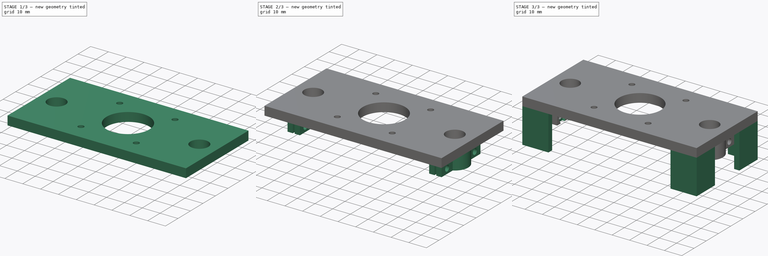
[diagram: build sequence overview — one tinted view per stage of 3, left to right]
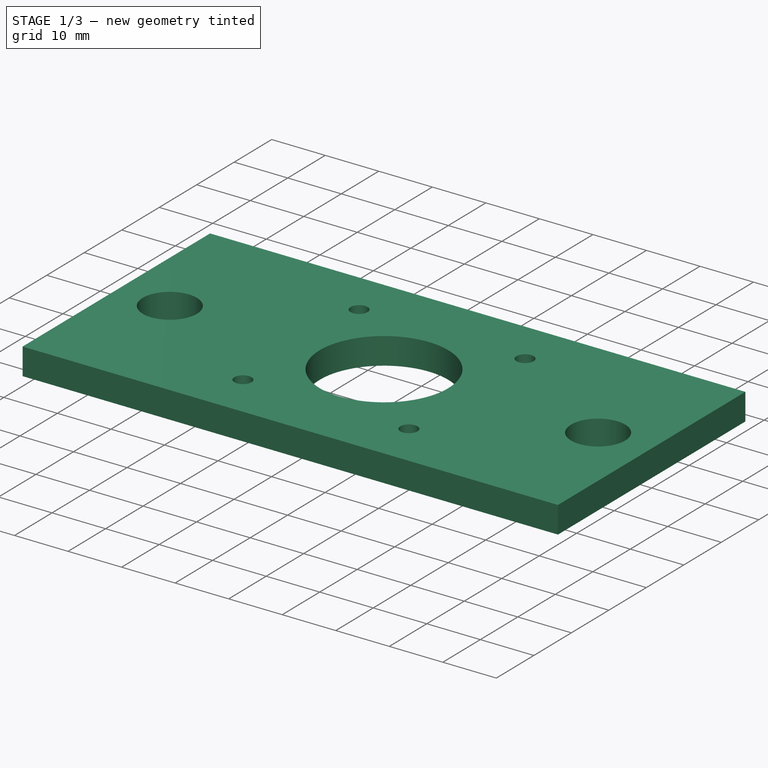
[diagram: stage 1 of 3 — iso view after this stage's code; geometry added in this stage tinted green]
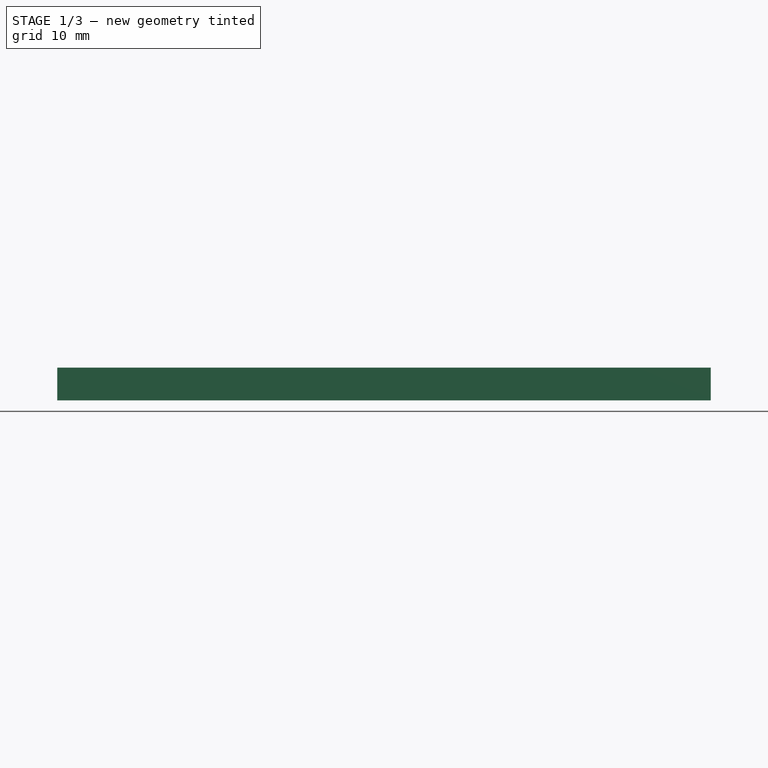
[diagram: stage 1 of 3 — front view after this stage's code; geometry added in this stage tinted green]
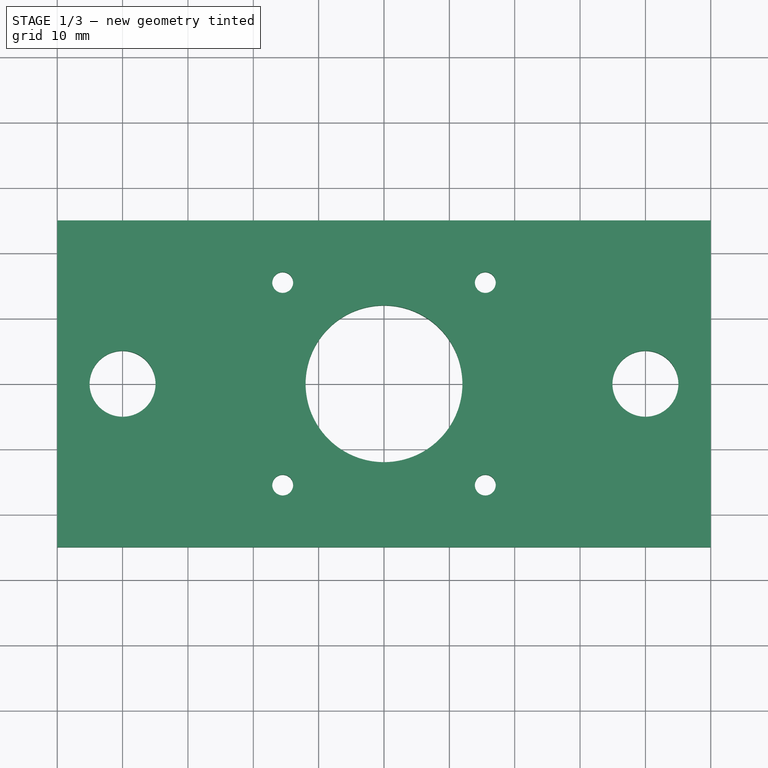
[diagram: stage 1 of 3 — top view after this stage's code; geometry added in this stage tinted green]
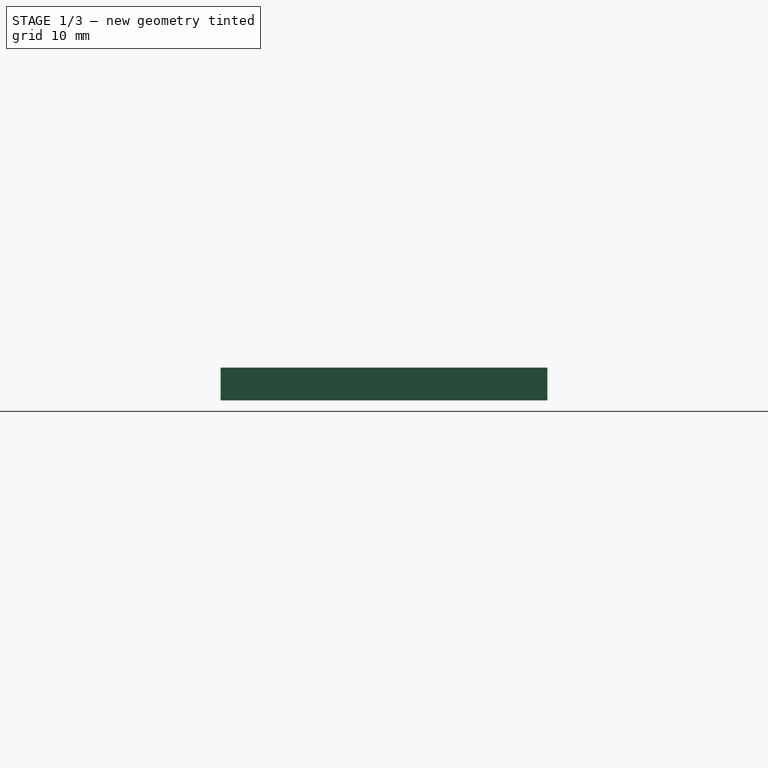
[diagram: stage 1 of 3 — right view after this stage's code; geometry added in this stage tinted green]
FCSTD DOCUMENT  (FreeCAD 0.15R4671 (Git))
Label: Z-Achse Halter Schrittmotor und Wellen
License: All rights reserved
LicenseURL: http://de.wikipedia.org/wiki/Alle_Rechte_vorbehalten
objects: Sketcher::SketchObject×8, PartDesign::Pocket×5, PartDesign::Pad×3
note: 24 computed .brp shape members not serialized (recipe doc carries the construction recipe); baked Part::Feature solids carry a one-line shape summary decoded from their .brp

FEATURE [Sketcher::SketchObject] Sketch
  sketch-geometry (4):
    g0: LineSegment StartX=-50 StartY=25 StartZ=0 EndX=50 EndY=25 EndZ=0
    g1: LineSegment StartX=50 StartY=25 StartZ=0 EndX=50 EndY=-25 EndZ=0
    g2: LineSegment StartX=50 StartY=-25 StartZ=0 EndX=-50 EndY=-25 EndZ=0
    g3: LineSegment StartX=-50 StartY=-25 StartZ=0 EndX=-50 EndY=25 EndZ=0
  constraints (12):
    c: Coincident(g0,g1)
    c: Coincident(g1,g2)
    c: Coincident(g2,g3)
    c: Coincident(g3,g0)
    c: Horizontal(g0)
    c: Horizontal(g2)
    c: Vertical(g1)
    c: Vertical(g3)
    c: Symmetric(g1,g2,g-2)
    c: Symmetric(g1,g0,g-1)
    c: DistanceY(g1) = -50
    c: DistanceX(g2) = -100
FEATURE [PartDesign::Pad] Pad
  Length = 5
  Length2 = 100
  Sketch = -> Sketch
  Type = 0
FEATURE [Sketcher::SketchObject] Sketch001
  Placement = pos=(0,0,5) rot=(0,0,1;0rad)
  Support = -> Pad [Face6]
  sketch-geometry (2):
    g0: Circle CenterX=-40 CenterY=0 CenterZ=0 NormalX=0 NormalY=0 NormalZ=1 Radius=5.05
    g1: Circle CenterX=40 CenterY=0 CenterZ=0 NormalX=0 NormalY=0 NormalZ=1 Radius=5.05
  constraints (5):
    c: PointOnObject(g0,g-1)
    c: Symmetric(g1,g0,g-2)
    c: Radius(g0) = 5.05
    c: Equal(g0,g1)
    c: DistanceX(g-1,g0) = -40
FEATURE [PartDesign::Pocket] Pocket
  Length = 5
  Sketch = -> Sketch001
  Type = 1
FEATURE [Sketcher::SketchObject] Sketch002
  Placement = pos=(0,0,5) rot=(0,0,1;0rad)
  Support = -> Pocket [Face5]
  sketch-geometry (9):
    g0: Circle CenterX=0 CenterY=0 CenterZ=0 NormalX=0 NormalY=0 NormalZ=1 Radius=12
    g1: LineSegment [constr] StartX=15.5 StartY=-15.5 StartZ=0 EndX=-15.5 EndY=-15.5 EndZ=0
    g2: LineSegment [constr] StartX=-15.5 StartY=-15.5 StartZ=0 EndX=-15.5 EndY=15.5 EndZ=0
    g3: LineSegment [constr] StartX=-15.5 StartY=15.5 StartZ=0 EndX=15.5 EndY=15.5 EndZ=0
    g4: LineSegment [constr] StartX=15.5 StartY=15.5 StartZ=0 EndX=15.5 EndY=-15.5 EndZ=0
    g5: Circle CenterX=-15.5 CenterY=15.5 CenterZ=0 NormalX=0 NormalY=0 NormalZ=1 Radius=1.6
    g6: Circle CenterX=15.5 CenterY=15.5 CenterZ=0 NormalX=0 NormalY=0 NormalZ=1 Radius=1.6
    g7: Circle CenterX=15.5 CenterY=-15.5 CenterZ=0 NormalX=0 NormalY=0 NormalZ=1 Radius=1.6
    g8: Circle CenterX=-15.5 CenterY=-15.5 CenterZ=0 NormalX=0 NormalY=0 NormalZ=1 Radius=1.6
  constraints (22):
    c: Coincident(g0,g-1)
    c: Radius(g0) = 12
    c: Coincident(g1,g2)
    c: Coincident(g2,g3)
    c: Coincident(g3,g4)
    c: Coincident(g4,g1)
    c: Horizontal(g1)
    c: Horizontal(g3)
    c: Vertical(g2)
    c: Vertical(g4)
    c: Equal(g1,g2)
    c: DistanceX(g3) = 31
    c: Symmetric(g1,g1,g-2)
    c: Symmetric(g3,g1,g-1)
    c: Coincident(g5,g2)
    c: Coincident(g6,g3)
    c: Coincident(g7,g1)
    c: Coincident(g8,g1)
    c: Radius(g5) = 1.6
    c: Equal(g5,g8)
    c: Equal(g5,g7)
    c: Equal(g5,g6)
FEATURE [PartDesign::Pocket] Pocket001
  Length = 5
  Sketch = -> Sketch002
  Type = 1
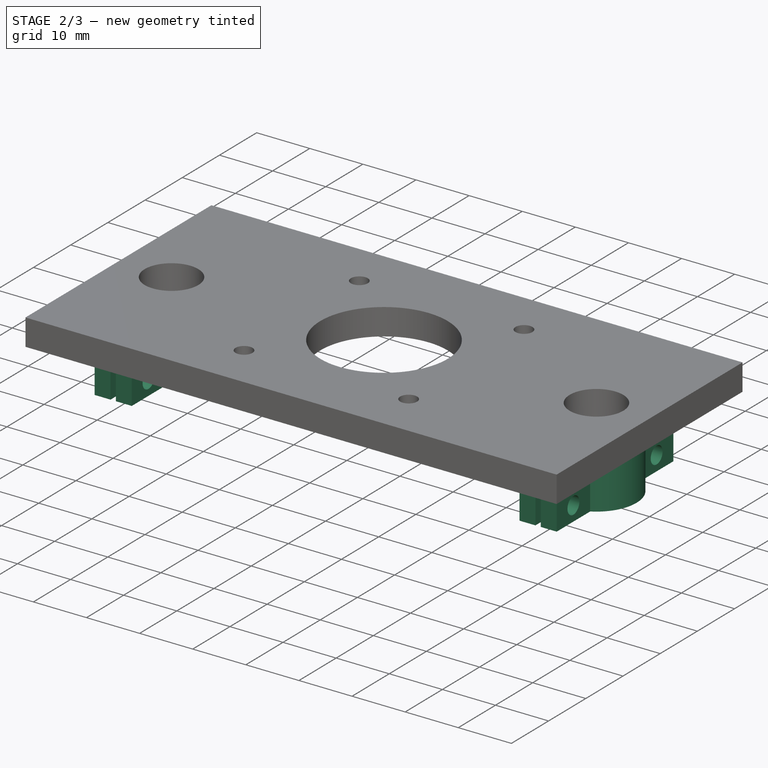
[diagram: stage 2 of 3 — iso view after this stage's code; geometry added in this stage tinted green]
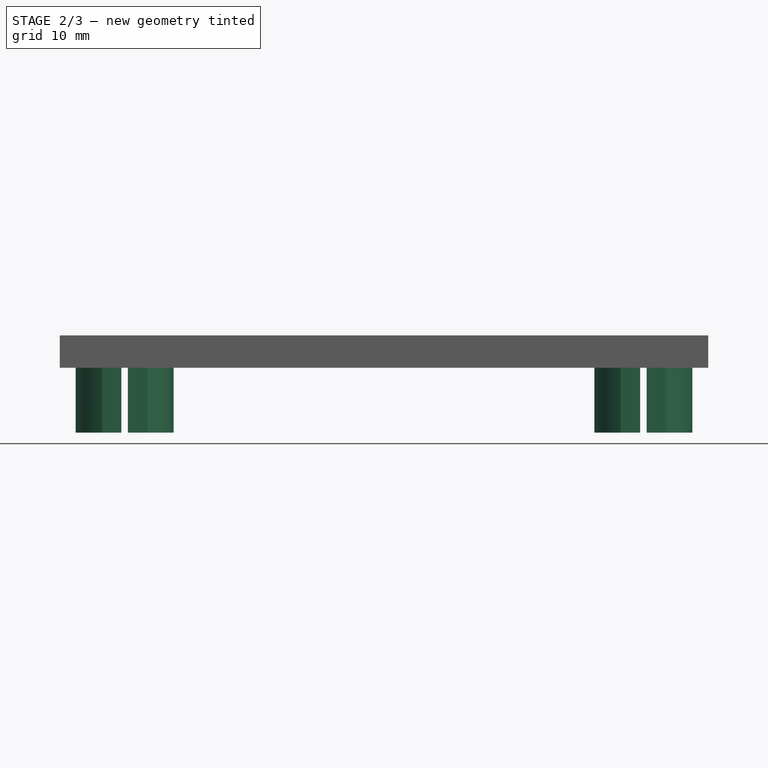
[diagram: stage 2 of 3 — front view after this stage's code; geometry added in this stage tinted green]
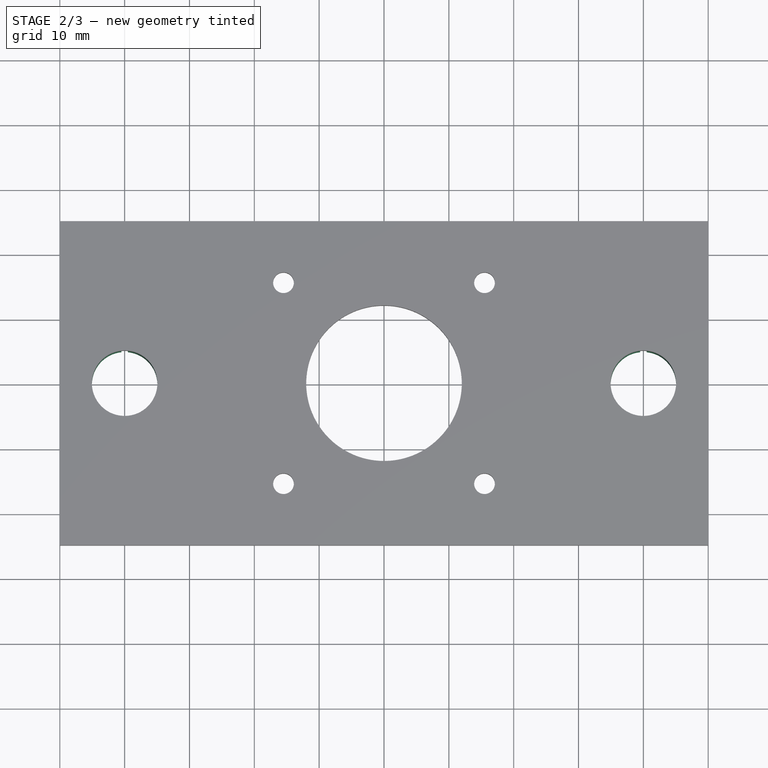
[diagram: stage 2 of 3 — top view after this stage's code; geometry added in this stage tinted green]
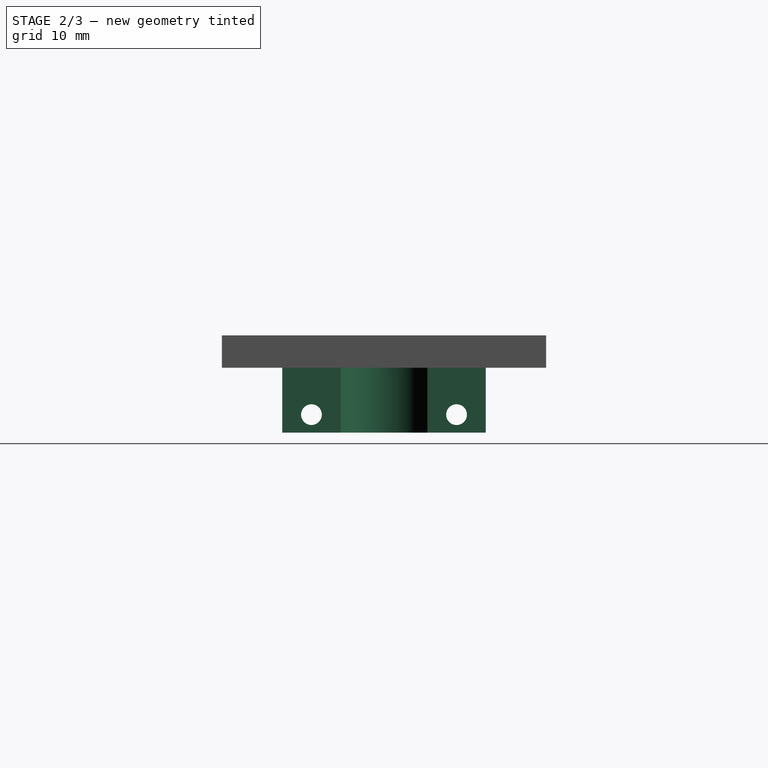
[diagram: stage 2 of 3 — right view after this stage's code; geometry added in this stage tinted green]
FEATURE [Sketcher::SketchObject] Sketch003
  ExternalGeometry = -> [Pocket001]
  Placement = pos=(0,0,0) rot=(1,0,0;3.14159rad)
  Support = -> Pocket001 [Face4]
  sketch-geometry (32):
    g0: ArcOfCircle CenterX=-40 CenterY=0 CenterZ=0 NormalX=0 NormalY=0 NormalZ=1 Radius=5.05 StartAngle=1.66997 EndAngle=4.61322
    g1: ArcOfCircle CenterX=-40 CenterY=0 CenterZ=0 NormalX=0 NormalY=0 NormalZ=1 Radius=5.05 StartAngle=4.81156 EndAngle=7.75481
    g2: LineSegment StartX=-43.5 StartY=15.6897 StartZ=0 EndX=-40.5 EndY=15.6897 EndZ=0
    g3: LineSegment StartX=-40.5 StartY=15.6897 StartZ=0 EndX=-40.5 EndY=5.02519 EndZ=0
    g4: LineSegment StartX=-43.5 StartY=6.68973 StartZ=0 EndX=-43.5 EndY=15.6897 EndZ=0
    g5: LineSegment StartX=-40.5 StartY=-5.02519 StartZ=0 EndX=-40.5 EndY=-15.6897 EndZ=0
    g6: LineSegment StartX=-40.5 StartY=-15.6897 StartZ=0 EndX=-43.5 EndY=-15.6897 EndZ=0
    g7: LineSegment StartX=-43.5 StartY=-15.6897 StartZ=0 EndX=-43.5 EndY=-6.68973 EndZ=0
    g8: LineSegment StartX=-39.5 StartY=15.6897 StartZ=0 EndX=-36.5 EndY=15.6897 EndZ=0
    g9: LineSegment StartX=-36.5 StartY=15.6897 StartZ=0 EndX=-36.5 EndY=6.68973 EndZ=0
    g10: LineSegment StartX=-39.5 StartY=5.02519 StartZ=0 EndX=-39.5 EndY=15.6897 EndZ=0
    g11: LineSegment StartX=-36.5 StartY=-6.68973 StartZ=0 EndX=-36.5 EndY=-15.6897 EndZ=0
    g12: LineSegment StartX=-36.5 StartY=-15.6897 StartZ=0 EndX=-39.5 EndY=-15.6897 EndZ=0
    g13: LineSegment StartX=-39.5 StartY=-15.6897 StartZ=0 EndX=-39.5 EndY=-5.02519 EndZ=0
    g14: ArcOfCircle CenterX=-40 CenterY=0 CenterZ=0 NormalX=0 NormalY=0 NormalZ=1 Radius=7.55 StartAngle=2.05282 EndAngle=4.23036
    g15: ArcOfCircle CenterX=-40 CenterY=0 CenterZ=0 NormalX=0 NormalY=0 NormalZ=1 Radius=7.55 StartAngle=5.19442 EndAngle=7.37195
    g16: ArcOfCircle CenterX=40 CenterY=0 CenterZ=0 NormalX=0 NormalY=0 NormalZ=1 Radius=5.05 StartAngle=1.66997 EndAngle=4.61322
    g17: ArcOfCircle CenterX=40 CenterY=0 CenterZ=0 NormalX=0 NormalY=0 NormalZ=1 Radius=7.55 StartAngle=2.05282 EndAngle=4.23036
    g18: ArcOfCircle CenterX=40 CenterY=0 CenterZ=0 NormalX=0 NormalY=0 NormalZ=1 Radius=5.05 StartAngle=4.81156 EndAngle=7.75481
    g19: ArcOfCircle CenterX=40 CenterY=0 CenterZ=0 NormalX=0 NormalY=0 NormalZ=1 Radius=7.55 StartAngle=5.19442 EndAngle=7.37195
    g20: LineSegment StartX=36.5 StartY=6.68973 StartZ=0 EndX=36.5 EndY=15.6897 EndZ=0
    g21: LineSegment StartX=36.5 StartY=15.6897 StartZ=0 EndX=39.5 EndY=15.6897 EndZ=0
    g22: LineSegment StartX=39.5 StartY=15.6897 StartZ=0 EndX=39.5 EndY=5.02519 EndZ=0
    g23: LineSegment StartX=40.5 StartY=5.02519 StartZ=0 EndX=40.5 EndY=15.6897 EndZ=0
    g24: LineSegment StartX=40.5 StartY=15.6897 StartZ=0 EndX=43.5 EndY=15.6897 EndZ=0
    g25: LineSegment StartX=43.5 StartY=15.6897 StartZ=0 EndX=43.5 EndY=6.68973 EndZ=0
    g26: LineSegment StartX=36.5 StartY=-6.68973 StartZ=0 EndX=36.5 EndY=-15.6897 EndZ=0
    g27: LineSegment StartX=36.5 StartY=-15.6897 StartZ=0 EndX=39.5 EndY=-15.6897 EndZ=0
    g28: LineSegment StartX=39.5 StartY=-15.6897 StartZ=0 EndX=39.5 EndY=-5.02519 EndZ=0
    g29: LineSegment StartX=40.5 StartY=-5.02519 StartZ=0 EndX=40.5 EndY=-15.6897 EndZ=0
    g30: LineSegment StartX=40.5 StartY=-15.6897 StartZ=0 EndX=43.5 EndY=-15.6897 EndZ=0
    g31: LineSegment StartX=43.5 StartY=-15.6897 StartZ=0 EndX=43.5 EndY=-6.68973 EndZ=0
  constraints (98):
    c: Coincident(g0,g-4)
    c: PointOnObject(g0,g-4)
    c: PointOnObject(g1,g-4)
    c: Coincident(g1,g0)
    c: Coincident(g2,g3)
    c: Coincident(g4,g2)
    c: Horizontal(g2)
    c: Vertical(g3)
    c: Vertical(g4)
    c: Coincident(g5,g6)
    c: Coincident(g6,g7)
    c: Horizontal(g6)
    c: Vertical(g5)
    c: Vertical(g7)
    c: Coincident(g8,g9)
    c: Coincident(g10,g8)
    c: Horizontal(g8)
    c: Vertical(g9)
    c: Vertical(g10)
    c: Coincident(g11,g12)
    c: Coincident(g12,g13)
    c: Horizontal(g12)
    c: Vertical(g11)
    c: Vertical(g13)
    c: PointOnObject(g2,g8)
    c: PointOnObject(g5,g12)
    c: PointOnObject(g5,g3)
    c: PointOnObject(g10,g13)
    c: Equal(g2,g8)
    c: Equal(g8,g6)
    c: Equal(g6,g12)
    c: Equal(g3,g10)
    c: Equal(g10,g13)
    c: Equal(g13,g5)
    c: DistanceX(g8) = 3
    c: Coincident(g0,g3)
    c: Coincident(g14,g0)
    c: Coincident(g4,g14)
    c: Coincident(g7,g14)
    c: Coincident(g1,g10)
    c: Coincident(g5,g0)
    c: Coincident(g1,g13)
    c: Coincident(g15,g0)
    c: Coincident(g15,g9)
    c: Coincident(g15,g11)
    c: DistanceX(g0,g1) = 1
    c: Equal(g14,g15)
    c: Radius(g15) = 7.55
    c: DistanceY(g11) = -9
    c: Coincident(g17,g16)
    c: Coincident(g18,g16)
    c: Coincident(g19,g16)
    c: Coincident(g20,g21)
    c: Coincident(g21,g22)
    c: Coincident(g22,g16)
    c: Coincident(g17,g20)
    c: Vertical(g20)
    c: Vertical(g22)
    c: Horizontal(g21)
    c: Vertical(g23)
    c: Coincident(g23,g24)
    c: Horizontal(g24)
    c: Coincident(g24,g25)
    c: Vertical(g25)
    c: Vertical(g26)
    c: Coincident(g26,g27)
    c: Horizontal(g27)
    c: Coincident(g27,g28)
    c: Vertical(g28)
    c: Vertical(g29)
    c: Coincident(g29,g30)
    c: Coincident(g30,g31)
    c: Vertical(g31)
    c: Coincident(g19,g31)
    c: Coincident(g18,g29)
    c: Coincident(g16,g28)
    c: Coincident(g18,g23)
    c: Coincident(g19,g25)
    c: Coincident(g17,g26)
    c: Horizontal(g30)
    c: Equal(g27,g30)
    c: Equal(g30,g24)
    c: Equal(g24,g21)
    c: Equal(g21,g8)
    c: Equal(g29,g28)
    c: Equal(g28,g23)
    c: Equal(g23,g22)
    c: Equal(g22,g10)
    c: Equal(g9,g20)
    c: Equal(g20,g25)
    c: Equal(g25,g31)
    c: Equal(g31,g26)
    c: Coincident(g16,g-3)
    c: PointOnObject(g18,g-3)
    c: PointOnObject(g16,g-3)
    c: DistanceX(g16,g18) = 1
    c: Equal(g15,g17)
    c: Equal(g17,g19)
FEATURE [PartDesign::Pad] Pad001
  Length = 10
  Length2 = 100
  Sketch = -> Sketch003
  Type = 0
FEATURE [Sketcher::SketchObject] Sketch004
  ExternalGeometry = -> [Pad001]
  Placement = pos=(-43.5,0,0) rot=(0.57735,-0.57735,-0.57735;2.0944rad)
  Support = -> Pad001 [Face10]
  sketch-geometry (9):
    g0: LineSegment [constr] StartX=14.394 StartY=-7.225 StartZ=0 EndX=12.7919 EndY=-4.45 EndZ=0
    g1: LineSegment [constr] StartX=12.7919 StartY=-4.45 StartZ=0 EndX=9.58758 EndY=-4.45 EndZ=0
    g2: LineSegment [constr] StartX=9.58758 StartY=-4.45 StartZ=0 EndX=7.98544 EndY=-7.225 EndZ=0
    g3: LineSegment [constr] StartX=7.98544 StartY=-7.225 StartZ=0 EndX=9.58758 EndY=-10 EndZ=0
    g4: LineSegment [constr] StartX=9.58758 StartY=-10 StartZ=0 EndX=12.7919 EndY=-10 EndZ=0
    g5: LineSegment [constr] StartX=12.7919 StartY=-10 StartZ=0 EndX=14.394 EndY=-7.225 EndZ=0
    g6: Circle [constr] CenterX=11.1897 CenterY=-7.225 CenterZ=0 NormalX=0 NormalY=0 NormalZ=1 Radius=3.20429
    g7: Circle CenterX=-11.1897 CenterY=-7.225 CenterZ=0 NormalX=0 NormalY=0 NormalZ=1 Radius=1.6
    g8: Circle CenterX=11.1897 CenterY=-7.225 CenterZ=0 NormalX=0 NormalY=0 NormalZ=1 Radius=1.6
  constraints (21):
    c: Coincident(g0,g1)
    c: Coincident(g1,g2)
    c: Coincident(g2,g3)
    c: Coincident(g3,g4)
    c: Coincident(g4,g5)
    c: Coincident(g5,g0)
    c: Equal(g0, g1-g5) x5
    c: PointOnObject(g0,g6)
    c: PointOnObject(g1,g6)
    c: PointOnObject(g2,g6)
    c: PointOnObject(g3,g6)
    c: PointOnObject(g4,g6)
    c: PointOnObject(g5,g6)
    c: Distance(g3,g0) = 5.55
    c: Horizontal(g4)
    c: DistanceX(g-3,g6) = 4.5
    c: DistanceY(g3,g-3) = 0
    c: Equal(g8,g7)
    c: Radius(g8) = 1.6
    c: Symmetric(g7,g8,g-2)
    c: Coincident(g8,g6)
FEATURE [PartDesign::Pocket] Pocket002
  Length = 5
  Sketch = -> Sketch004
  Type = 1
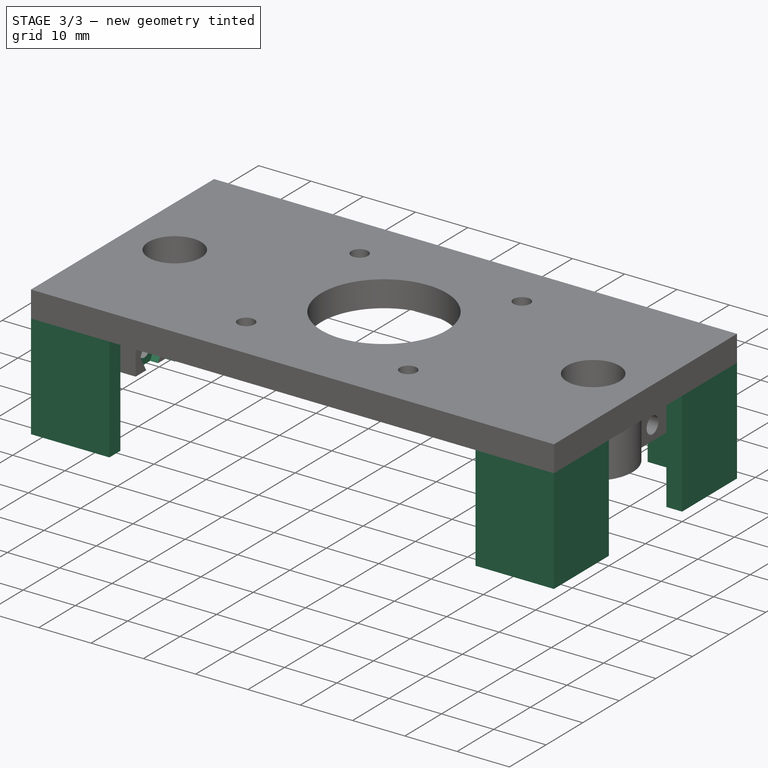
[diagram: stage 3 of 3 — iso view after this stage's code; geometry added in this stage tinted green]
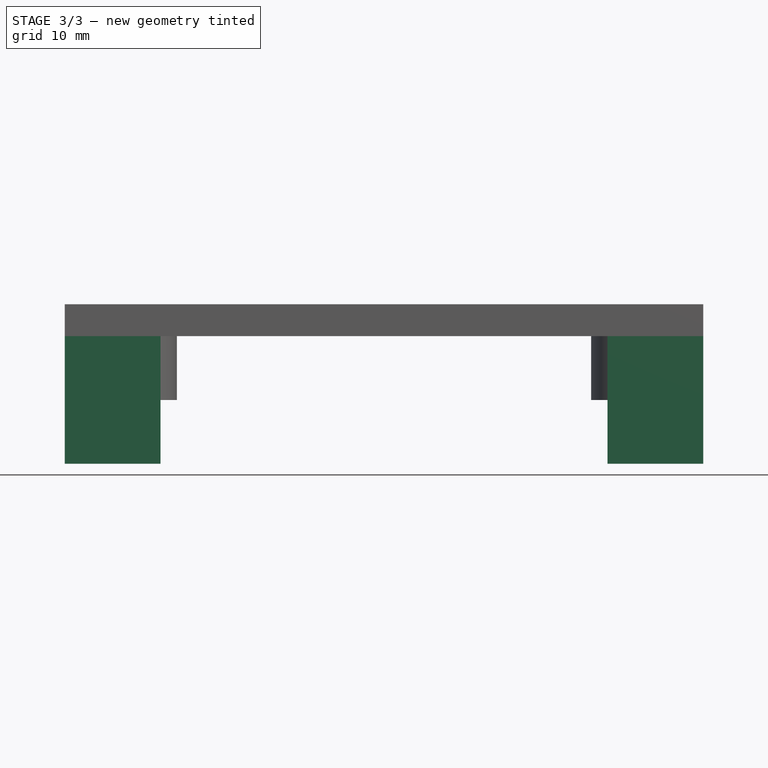
[diagram: stage 3 of 3 — front view after this stage's code; geometry added in this stage tinted green]
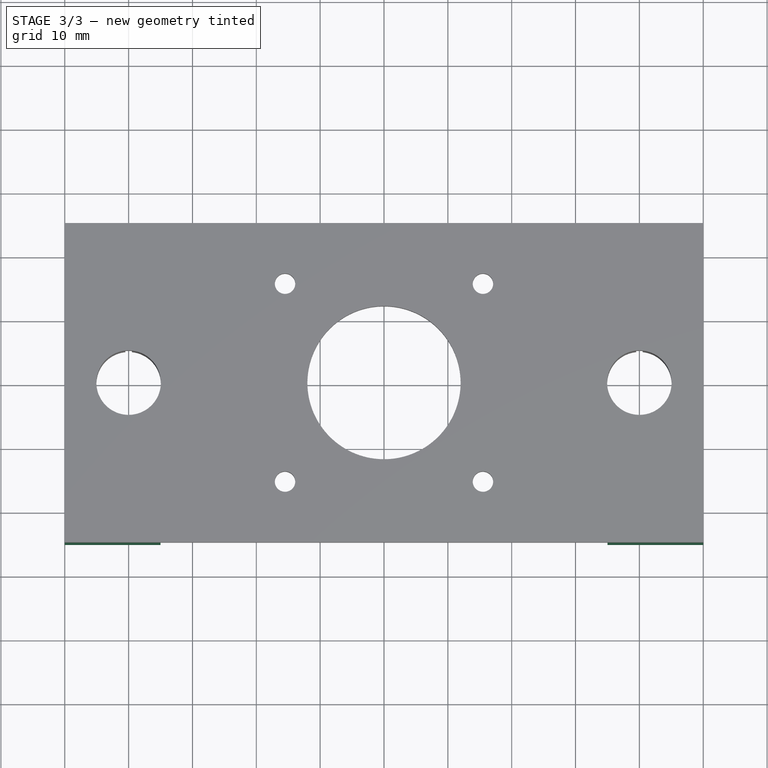
[diagram: stage 3 of 3 — top view after this stage's code; geometry added in this stage tinted green]
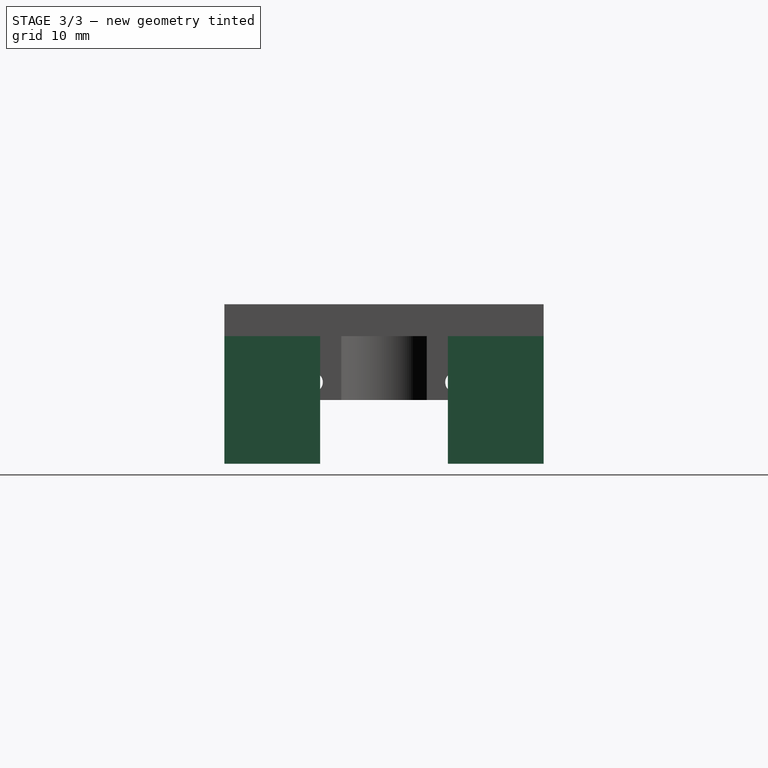
[diagram: stage 3 of 3 — right view after this stage's code; geometry added in this stage tinted green]
FEATURE [Sketcher::SketchObject] Sketch005
  ExternalGeometry = -> [Pocket002]
  Placement = pos=(36.5,0,0) rot=(0.57735,-0.57735,-0.57735;2.0944rad)
  Support = -> Pocket002 [Face27]
  sketch-geometry (14):
    g0: LineSegment StartX=-7.98544 StartY=-7.225 StartZ=0 EndX=-9.58758 EndY=-4.45 EndZ=0
    g1: LineSegment StartX=-9.58758 StartY=-4.45 StartZ=0 EndX=-12.7919 EndY=-4.45 EndZ=0
    g2: LineSegment StartX=-12.7919 StartY=-4.45 StartZ=0 EndX=-14.394 EndY=-7.225 EndZ=0
    g3: LineSegment StartX=-14.394 StartY=-7.225 StartZ=0 EndX=-12.7919 EndY=-10 EndZ=0
    g4: LineSegment StartX=-12.7919 StartY=-10 StartZ=0 EndX=-9.58758 EndY=-10 EndZ=0
    g5: LineSegment StartX=-9.58758 StartY=-10 StartZ=0 EndX=-7.98544 EndY=-7.225 EndZ=0
    g6: Circle [constr] CenterX=-11.1897 CenterY=-7.225 CenterZ=0 NormalX=0 NormalY=0 NormalZ=1 Radius=3.20429
    g7: LineSegment StartX=12.7919 StartY=-10 StartZ=0 EndX=14.394 EndY=-7.225 EndZ=0
    g8: LineSegment StartX=14.394 StartY=-7.225 StartZ=0 EndX=12.7919 EndY=-4.45 EndZ=0
    g9: LineSegment StartX=12.7919 StartY=-4.45 StartZ=0 EndX=9.58758 EndY=-4.45 EndZ=0
    g10: LineSegment StartX=9.58758 StartY=-4.45 StartZ=0 EndX=7.98544 EndY=-7.225 EndZ=0
    g11: LineSegment StartX=7.98544 StartY=-7.225 StartZ=0 EndX=9.58758 EndY=-10 EndZ=0
    g12: LineSegment StartX=9.58758 StartY=-10 StartZ=0 EndX=12.7919 EndY=-10 EndZ=0
    g13: Circle [constr] CenterX=11.1897 CenterY=-7.225 CenterZ=0 NormalX=0 NormalY=0 NormalZ=1 Radius=3.20429
  constraints (33):
    c: Coincident(g0,g1)
    c: Coincident(g1,g2)
    c: Coincident(g2,g3)
    c: Coincident(g3,g4)
    c: Coincident(g4,g5)
    c: Coincident(g5,g0)
    c: Equal(g0, g1-g5) x5
    c: PointOnObject(g0,g6)
    c: PointOnObject(g1,g6)
    c: PointOnObject(g2,g6)
    c: PointOnObject(g3,g6)
    c: PointOnObject(g4,g6)
    c: PointOnObject(g5,g6)
    c: Coincident(g7,g8)
    c: Coincident(g8,g9)
    c: Coincident(g9,g10)
    c: Coincident(g10,g11)
    c: Coincident(g11,g12)
    c: Coincident(g12,g7)
    c: Equal(g7, g8-g12) x5
    c: PointOnObject(g7,g13)
    c: PointOnObject(g8,g13)
    c: PointOnObject(g9,g13)
    c: PointOnObject(g10,g13)
    c: PointOnObject(g11,g13)
    c: PointOnObject(g12,g13)
    c: Coincident(g10,g-3)
    c: Symmetric(g13,g6,g-2)
    c: Coincident(g-3,g13)
    c: Equal(g6,g13)
    c: Horizontal(g4)
    c: Horizontal(g12)
    c: DistanceY(g11,g9) = 5.55
FEATURE [PartDesign::Pocket] Pocket003
  Length = 1.5
  Sketch = -> Sketch005
  Type = 0
FEATURE [Sketcher::SketchObject] Sketch006
  ExternalGeometry = -> [Pocket003]
  Placement = pos=(-36.5,0,0) rot=(0.57735,0.57735,0.57735;2.0944rad)
  Support = -> Pocket003 [Face17]
  sketch-geometry (14):
    g0: LineSegment StartX=-12.7919 StartY=-10 StartZ=0 EndX=-9.58758 EndY=-10 EndZ=0
    g1: LineSegment StartX=-9.58758 StartY=-10 StartZ=0 EndX=-7.98544 EndY=-7.225 EndZ=0
    g2: LineSegment StartX=-7.98544 StartY=-7.225 StartZ=0 EndX=-9.58758 EndY=-4.45 EndZ=0
    g3: LineSegment StartX=-9.58758 StartY=-4.45 StartZ=0 EndX=-12.7919 EndY=-4.45 EndZ=0
    g4: LineSegment StartX=-12.7919 StartY=-4.45 StartZ=0 EndX=-14.394 EndY=-7.225 EndZ=0
    g5: LineSegment StartX=-14.394 StartY=-7.225 StartZ=0 EndX=-12.7919 EndY=-10 EndZ=0
    g6: Circle [constr] CenterX=-11.1897 CenterY=-7.225 CenterZ=0 NormalX=0 NormalY=0 NormalZ=1 Radius=3.20429
    g7: LineSegment StartX=12.7919 StartY=-10 StartZ=0 EndX=14.394 EndY=-7.225 EndZ=0
    g8: LineSegment StartX=14.394 StartY=-7.225 StartZ=0 EndX=12.7919 EndY=-4.45 EndZ=0
    g9: LineSegment StartX=12.7919 StartY=-4.45 StartZ=0 EndX=9.58758 EndY=-4.45 EndZ=0
    g10: LineSegment StartX=9.58758 StartY=-4.45 StartZ=0 EndX=7.98544 EndY=-7.225 EndZ=0
    g11: LineSegment StartX=7.98544 StartY=-7.225 StartZ=0 EndX=9.58758 EndY=-10 EndZ=0
    g12: LineSegment StartX=9.58758 StartY=-10 StartZ=0 EndX=12.7919 EndY=-10 EndZ=0
    g13: Circle [constr] CenterX=11.1897 CenterY=-7.225 CenterZ=0 NormalX=0 NormalY=0 NormalZ=1 Radius=3.20429
  constraints (32):
    c: Coincident(g0,g1)
    c: Coincident(g1,g2)
    c: Coincident(g2,g3)
    c: Coincident(g3,g4)
    c: Coincident(g4,g5)
    c: Coincident(g5,g0)
    c: Equal(g0, g1-g5) x5
    c: PointOnObject(g0,g6)
    c: PointOnObject(g1,g6)
    c: PointOnObject(g2,g6)
    c: PointOnObject(g3,g6)
    c: PointOnObject(g4,g6)
    c: PointOnObject(g5,g6)
    c: Coincident(g7,g8)
    c: Coincident(g8,g9)
    c: Coincident(g9,g10)
    c: Coincident(g10,g11)
    c: Coincident(g11,g12)
    c: Coincident(g12,g7)
    c: Equal(g7, g8-g12) x5
    c: PointOnObject(g7,g13)
    c: PointOnObject(g8,g13)
    c: PointOnObject(g9,g13)
    c: PointOnObject(g10,g13)
    c: PointOnObject(g11,g13)
    c: PointOnObject(g12,g13)
    c: Symmetric(g13,g6,g-2)
    c: Equal(g13,g6)
    c: DistanceY(g9,g11) = -5.55
    c: Coincident(g-3,g13)
    c: Horizontal(g12)
    c: Horizontal(g0)
FEATURE [PartDesign::Pocket] Pocket004
  Length = 1.5
  Sketch = -> Sketch006
  Type = 0
FEATURE [Sketcher::SketchObject] Sketch007
  ExternalGeometry = -> [Pocket004]
  Placement = pos=(0,0,0) rot=(1,0,0;3.14159rad)
  Support = -> Pocket004 [Face4]
  sketch-geometry (24):
    g0: LineSegment StartX=-50 StartY=-10 StartZ=0 EndX=-50 EndY=-25 EndZ=0
    g1: LineSegment StartX=-50 StartY=-25 StartZ=0 EndX=-35 EndY=-25 EndZ=0
    g2: LineSegment StartX=-35 StartY=-25 StartZ=0 EndX=-35 EndY=-22 EndZ=0
    g3: LineSegment StartX=-35 StartY=-22 StartZ=0 EndX=-47 EndY=-22 EndZ=0
    g4: LineSegment StartX=-47 StartY=-22 StartZ=0 EndX=-47 EndY=-10 EndZ=0
    g5: LineSegment StartX=-47 StartY=-10 StartZ=0 EndX=-50 EndY=-10 EndZ=0
    g6: LineSegment StartX=35 StartY=-25 StartZ=0 EndX=50 EndY=-25 EndZ=0
    g7: LineSegment StartX=50 StartY=-25 StartZ=0 EndX=50 EndY=-10 EndZ=0
    g8: LineSegment StartX=50 StartY=-10 StartZ=0 EndX=47 EndY=-10 EndZ=0
    g9: LineSegment StartX=47 StartY=-10 StartZ=0 EndX=47 EndY=-22 EndZ=0
    g10: LineSegment StartX=47 StartY=-22 StartZ=0 EndX=35 EndY=-22 EndZ=0
    g11: LineSegment StartX=35 StartY=-22 StartZ=0 EndX=35 EndY=-25 EndZ=0
    g12: LineSegment StartX=35 StartY=25 StartZ=0 EndX=50 EndY=25 EndZ=0
    g13: LineSegment StartX=50 StartY=25 StartZ=0 EndX=50 EndY=10 EndZ=0
    g14: LineSegment StartX=50 StartY=10 StartZ=0 EndX=47 EndY=10 EndZ=0
    g15: LineSegment StartX=47 StartY=10 StartZ=0 EndX=47 EndY=22 EndZ=0
    g16: LineSegment StartX=47 StartY=22 StartZ=0 EndX=35 EndY=22 EndZ=0
    g17: LineSegment StartX=35 StartY=22 StartZ=0 EndX=35 EndY=25 EndZ=0
    g18: LineSegment StartX=-50 StartY=25 StartZ=0 EndX=-50 EndY=10 EndZ=0
    g19: LineSegment StartX=-50 StartY=10 StartZ=0 EndX=-47 EndY=10 EndZ=0
    g20: LineSegment StartX=-47 StartY=10 StartZ=0 EndX=-47 EndY=22 EndZ=0
    g21: LineSegment StartX=-47 StartY=22 StartZ=0 EndX=-35 EndY=22 EndZ=0
    g22: LineSegment StartX=-35 StartY=22 StartZ=0 EndX=-35 EndY=25 EndZ=0
    g23: LineSegment StartX=-35 StartY=25 StartZ=0 EndX=-50 EndY=25 EndZ=0
  constraints (68):
    c: Vertical(g0)
    c: Coincident(g0,g1)
    c: Horizontal(g1)
    c: Coincident(g1,g2)
    c: Coincident(g2,g3)
    c: Horizontal(g3)
    c: Coincident(g3,g4)
    c: Vertical(g4)
    c: Coincident(g4,g5)
    c: Coincident(g5,g0)
    c: Horizontal(g5)
    c: Horizontal(g6)
    c: Coincident(g6,g7)
    c: Vertical(g7)
    c: Coincident(g7,g8)
    c: Horizontal(g8)
    c: Coincident(g8,g9)
    c: Vertical(g9)
    c: Coincident(g9,g10)
    c: Horizontal(g10)
    c: Coincident(g10,g11)
    c: Coincident(g11,g6)
    c: Vertical(g11)
    c: Horizontal(g12)
    c: Coincident(g12,g13)
    c: Vertical(g13)
    c: Coincident(g13,g14)
    c: Horizontal(g14)
    c: Coincident(g14,g15)
    c: Vertical(g15)
    c: Coincident(g15,g16)
    c: Horizontal(g16)
    c: Coincident(g16,g17)
    c: Coincident(g17,g12)
    c: Vertical(g17)
    c: Vertical(g18)
    c: Coincident(g18,g19)
    c: Horizontal(g19)
    c: Coincident(g19,g20)
    c: Vertical(g20)
    c: Coincident(g20,g21)
    c: Horizontal(g21)
    c: Coincident(g21,g22)
    c: Vertical(g22)
    c: Coincident(g22,g23)
    c: Coincident(g23,g18)
    c: Horizontal(g23)
    c: Equal(g19,g22)
    c: Equal(g22,g17)
    c: Equal(g17,g14)
    c: Equal(g14,g8)
    c: Equal(g8,g11)
    c: Equal(g11,g2)
    c: Equal(g2,g5)
    c: Vertical(g2)
    c: DistanceX(g19) = 3
    c: Equal(g18,g0)
    c: Equal(g0,g7)
    c: Equal(g7,g13)
    c: DistanceY(g7) = 15
    c: Equal(g6,g1)
    c: Equal(g1,g23)
    c: Equal(g23,g12)
    c: DistanceX(g12) = 15
    c: Coincident(g-3,g0)
    c: Coincident(g6,g-4)
    c: Coincident(g12,g-4)
    c: Coincident(g18,g-3)
FEATURE [PartDesign::Pad] Pad002
  Length = 20
  Length2 = 100
  Sketch = -> Sketch007
  Type = 0
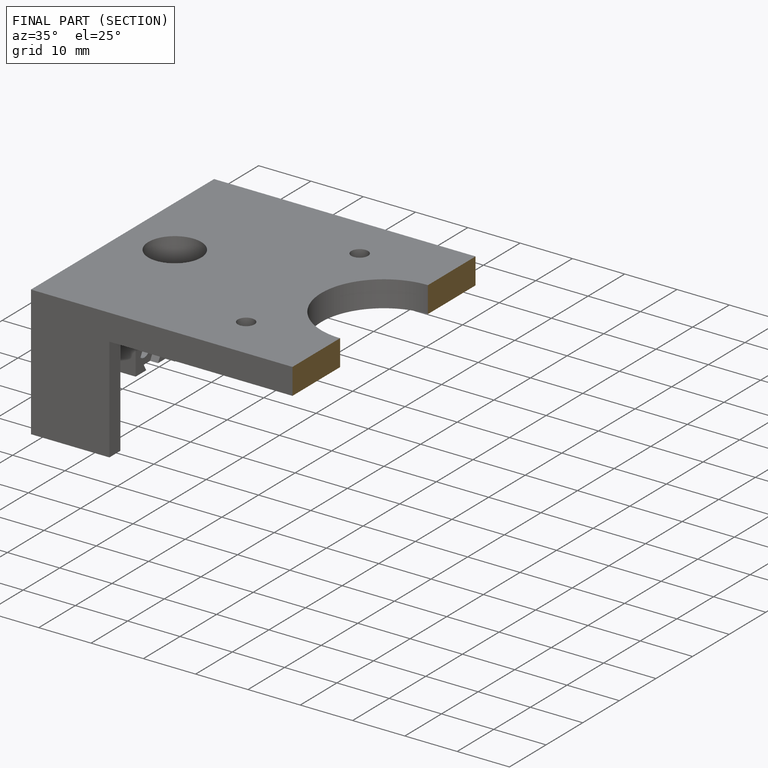
[diagram: finished part — half-section view (interior)]
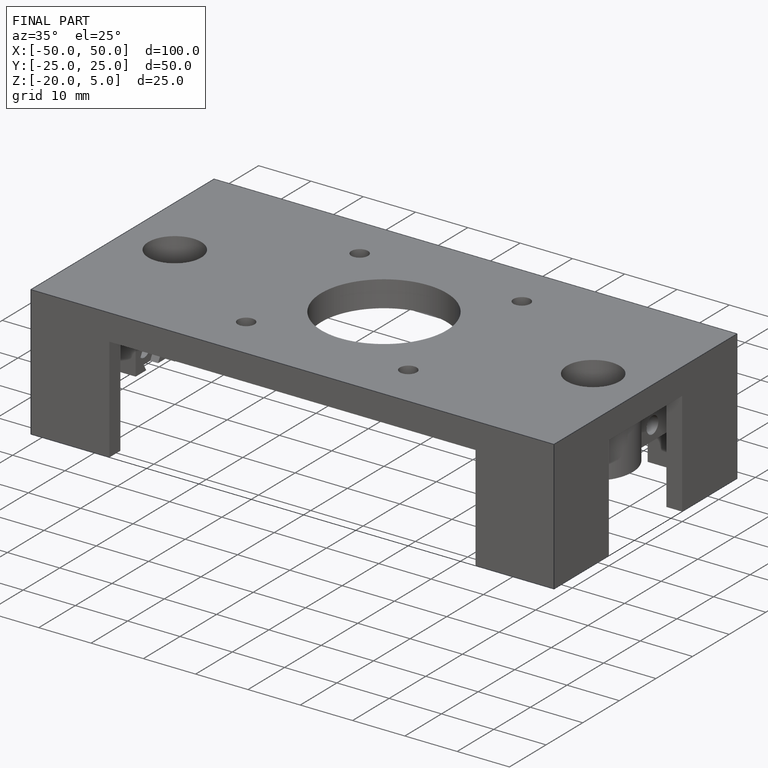
[diagram: finished part — iso view with bounding-box wireframe]
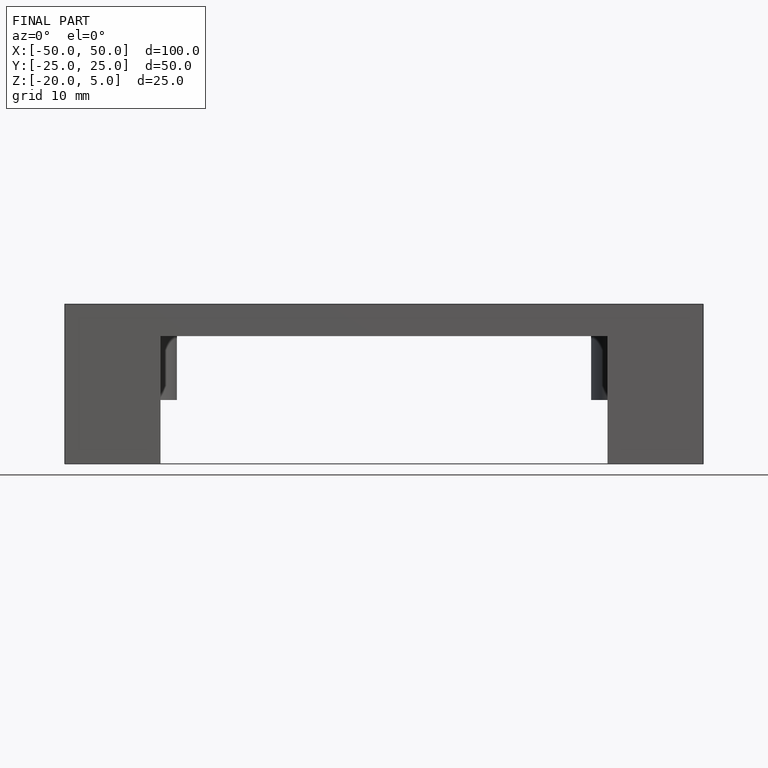
[diagram: finished part — front view with bounding-box wireframe]
